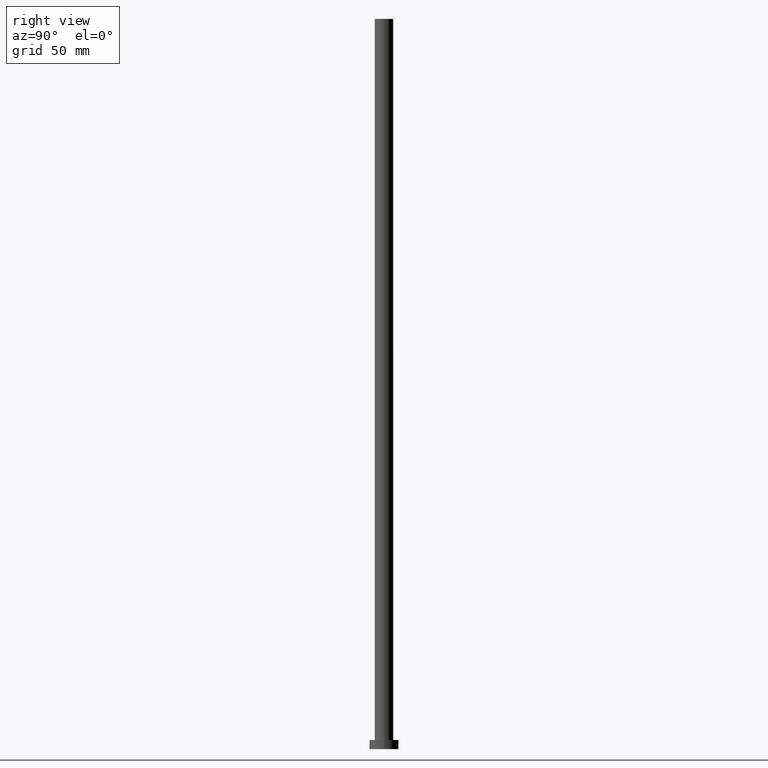
[diagram: clean part render]
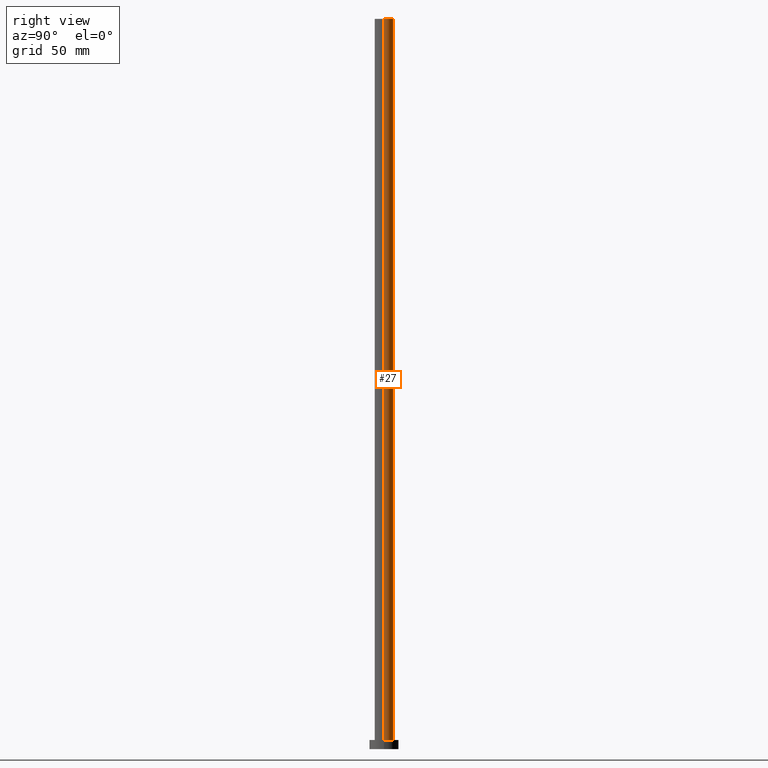
[diagram: same view with one face highlighted and labeled with its STEP entity id]
A machine part, right view. The second image highlights one B-rep face of the part: STEP entity #27.
In plain terms, the highlighted cylindrical surface (edge-blend (fillet) strip) has radius 5.1 mm, axis along (-0, -0, -1).
Its self-contained STEP definition (entity closure, byte-faithful):
#1 = FACE_OUTER_BOUND ( 'NONE', #31, .T. ) ;
#8 = CARTESIAN_POINT ( 'NONE',  ( 5.100000000000001421, 6.245698675651501825E-16, 400.0000000000000000 ) ) ;
#9 = AXIS2_PLACEMENT_3D ( 'NONE', #78, #187, #152 ) ;
#11 = ORIENTED_EDGE ( 'NONE', *, *, #186, .F. ) ;
#18 = LINE ( 'NONE', #53, #52 ) ;
#27 = ADVANCED_FACE ( 'NONE', ( #1 ), #96, .T. ) ;
#31 = EDGE_LOOP ( 'NONE', ( #72, #244, #49, #11 ) ) ;
#34 = EDGE_CURVE ( 'NONE', #147, #97, #18, .T. ) ;
#49 = ORIENTED_EDGE ( 'NONE', *, *, #250, .T. ) ;
#52 = VECTOR ( 'NONE', #93, 1000.000000000000000 ) ;
#53 = CARTESIAN_POINT ( 'NONE',  ( 5.100000000000001421, 6.245698675651501825E-16, 400.0000000000000000 ) ) ;
#58 = DIRECTION ( 'NONE',  ( 0.000000000000000000, 0.000000000000000000, 1.000000000000000000 ) ) ;
#64 = CIRCLE ( 'NONE', #120, 5.100000000000001421 ) ;
#71 = CARTESIAN_POINT ( 'NONE',  ( 0.000000000000000000, 0.000000000000000000, 5.000000000000000000 ) ) ;
#72 = ORIENTED_EDGE ( 'NONE', *, *, #115, .F. ) ;
#78 = CARTESIAN_POINT ( 'NONE',  ( 0.000000000000000000, 0.000000000000000000, 400.0000000000000000 ) ) ;
#93 = DIRECTION ( 'NONE',  ( -0.000000000000000000, -0.000000000000000000, -1.000000000000000000 ) ) ;
#96 = CYLINDRICAL_SURFACE ( 'NONE', #9, 5.100000000000001421 ) ;
#97 = VERTEX_POINT ( 'NONE', #221 ) ;
#102 = CARTESIAN_POINT ( 'NONE',  ( 0.000000000000000000, 0.000000000000000000, 400.0000000000000000 ) ) ;
#110 = DIRECTION ( 'NONE',  ( 1.000000000000000000, 0.000000000000000000, 0.000000000000000000 ) ) ;
#113 = CIRCLE ( 'NONE', #205, 5.100000000000001421 ) ;
#115 = EDGE_CURVE ( 'NONE', #147, #151, #113, .T. ) ;
#120 = AXIS2_PLACEMENT_3D ( 'NONE', #71, #161, #110 ) ;
#121 = DIRECTION ( 'NONE',  ( -0.000000000000000000, -0.000000000000000000, -1.000000000000000000 ) ) ;
#133 = VERTEX_POINT ( 'NONE', #193 ) ;
#147 = VERTEX_POINT ( 'NONE', #8 ) ;
#151 = VERTEX_POINT ( 'NONE', #159 ) ;
#152 = DIRECTION ( 'NONE',  ( -1.000000000000000000, 0.000000000000000000, 0.000000000000000000 ) ) ;
#159 = CARTESIAN_POINT ( 'NONE',  ( -5.100000000000001421, 0.000000000000000000, 400.0000000000000000 ) ) ;
#161 = DIRECTION ( 'NONE',  ( 0.000000000000000000, 0.000000000000000000, 1.000000000000000000 ) ) ;
#170 = CARTESIAN_POINT ( 'NONE',  ( -5.100000000000001421, 0.000000000000000000, 400.0000000000000000 ) ) ;
#186 = EDGE_CURVE ( 'NONE', #151, #133, #191, .T. ) ;
#187 = DIRECTION ( 'NONE',  ( -0.000000000000000000, -0.000000000000000000, -1.000000000000000000 ) ) ;
#190 = VECTOR ( 'NONE', #121, 1000.000000000000000 ) ;
#191 = LINE ( 'NONE', #170, #190 ) ;
#193 = CARTESIAN_POINT ( 'NONE',  ( -5.100000000000001421, 0.000000000000000000, 5.000000000000000000 ) ) ;
#205 = AXIS2_PLACEMENT_3D ( 'NONE', #102, #58, #242 ) ;
#221 = CARTESIAN_POINT ( 'NONE',  ( 5.100000000000001421, 6.245698675651501825E-16, 5.000000000000000000 ) ) ;
#242 = DIRECTION ( 'NONE',  ( 1.000000000000000000, 0.000000000000000000, 0.000000000000000000 ) ) ;
#244 = ORIENTED_EDGE ( 'NONE', *, *, #34, .T. ) ;
#250 = EDGE_CURVE ( 'NONE', #97, #133, #64, .T. ) ;